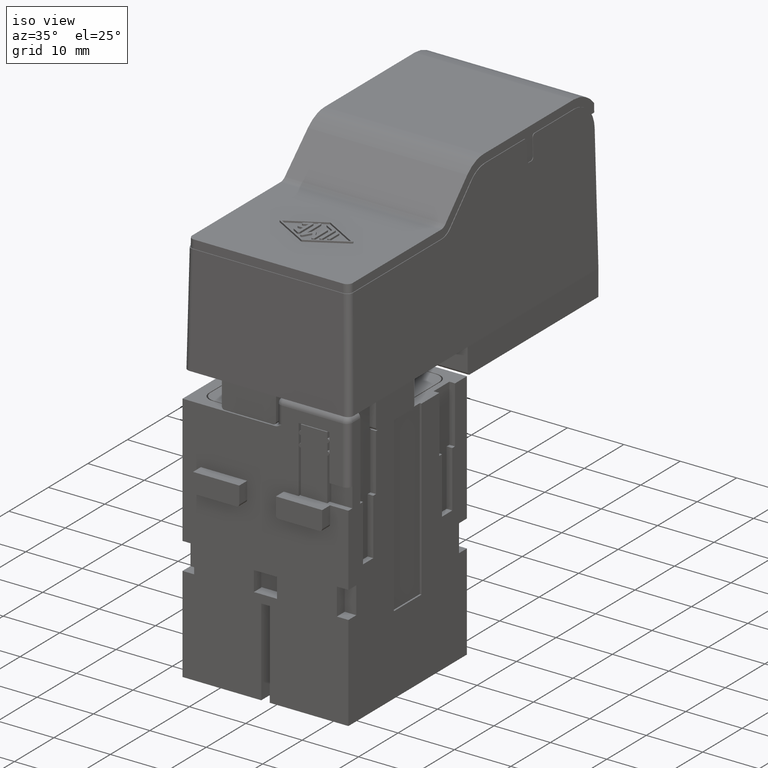
[diagram: clean part render]
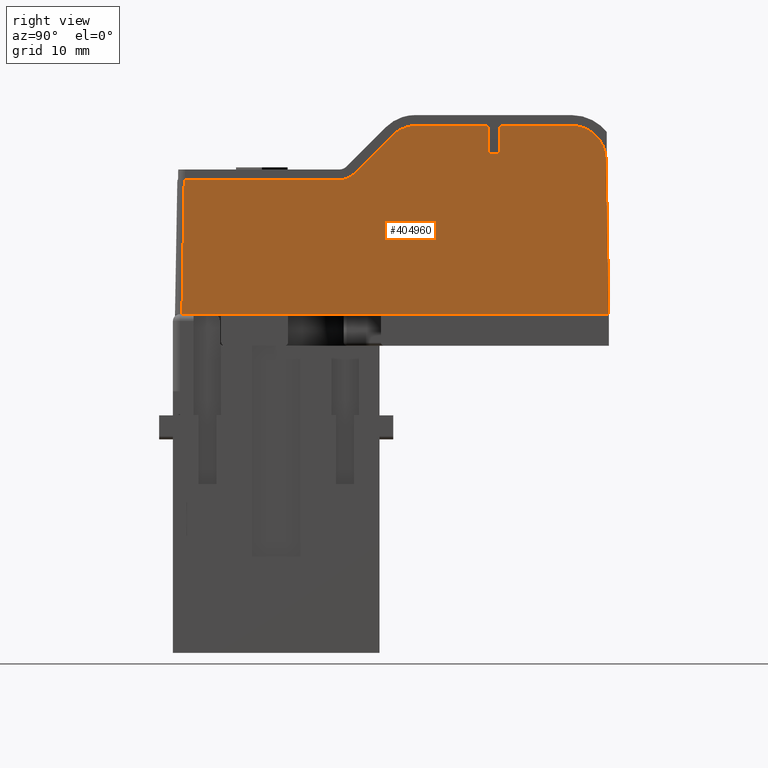
[diagram: tour spotlight — one face highlighted and labeled with its STEP entity id]
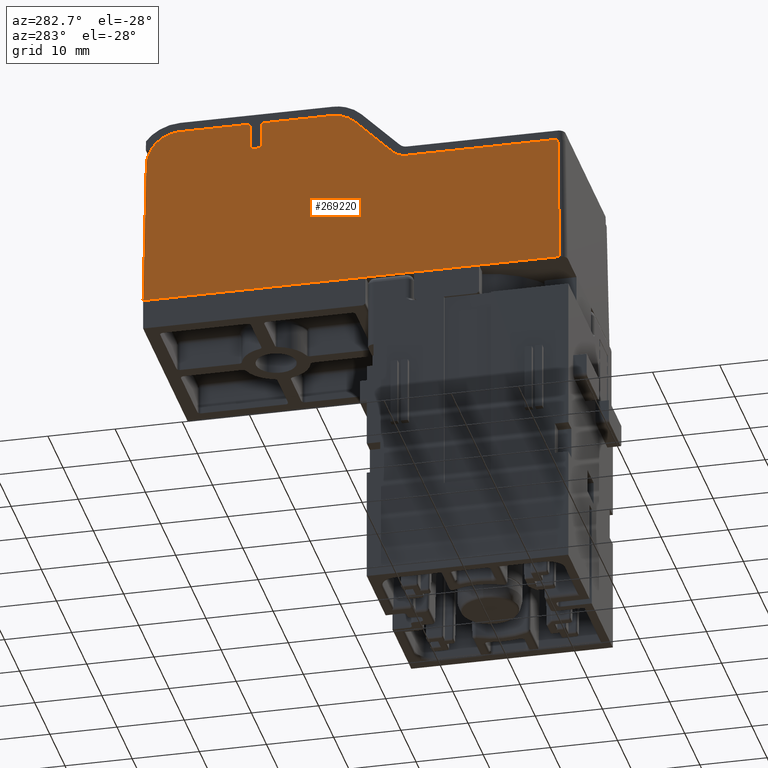
[diagram: tour spotlight — one face highlighted and labeled with its STEP entity id]
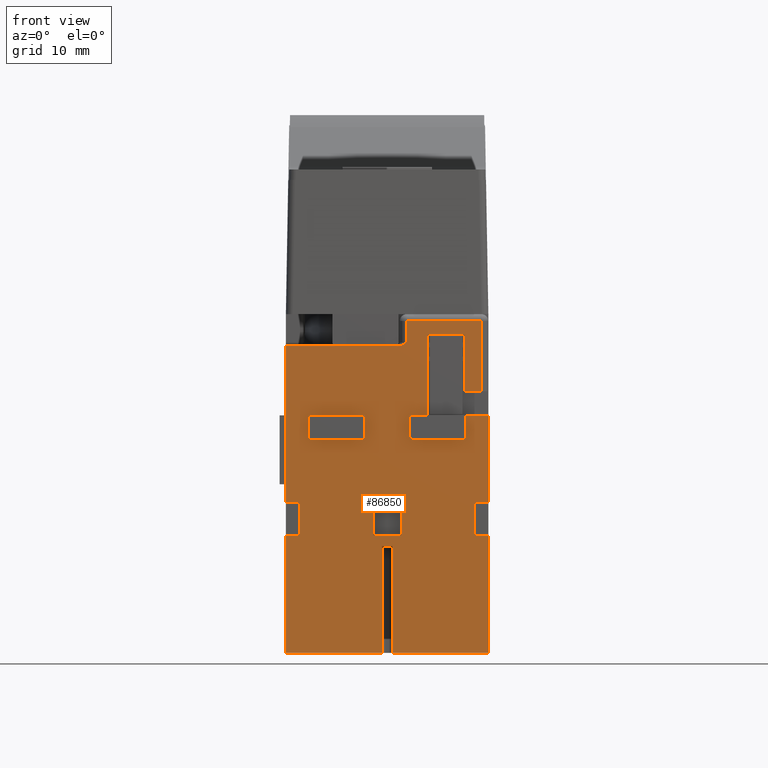
[diagram: tour spotlight — one face highlighted and labeled with its STEP entity id]
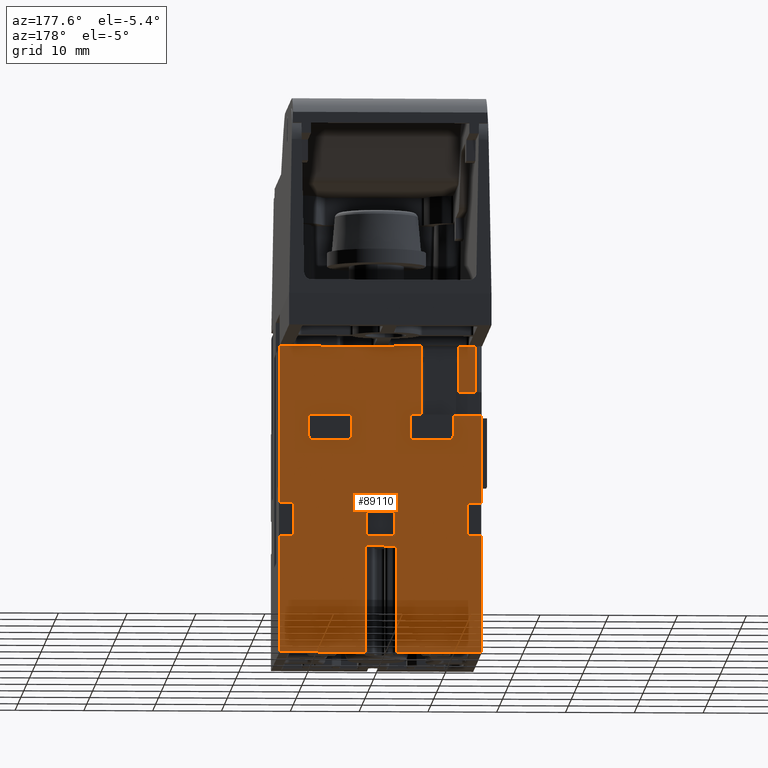
[diagram: tour spotlight — one face highlighted and labeled with its STEP entity id]
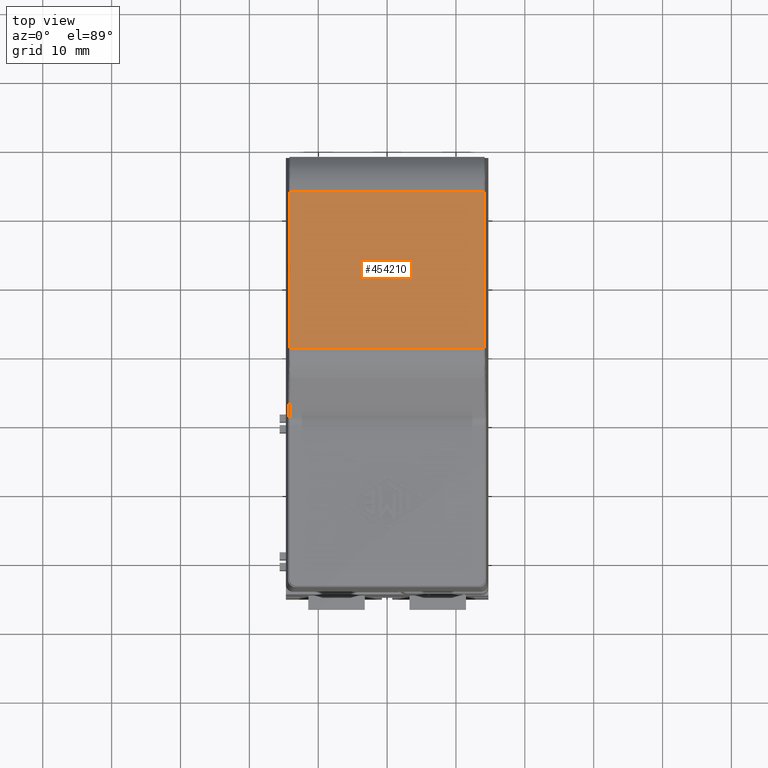
[diagram: tour spotlight — one face highlighted and labeled with its STEP entity id]
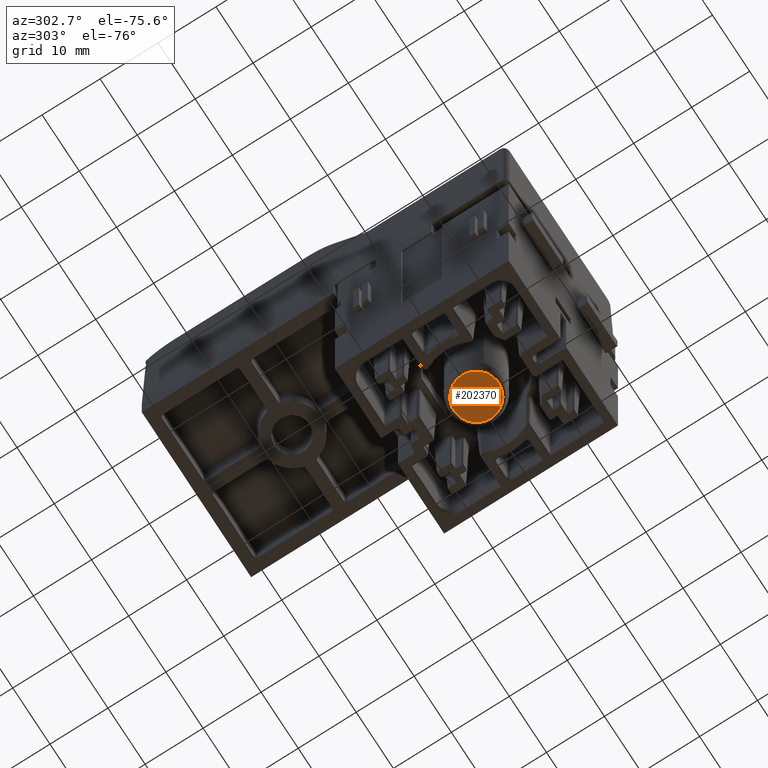
[diagram: tour spotlight — one face highlighted and labeled with its STEP entity id]
A machine part: a face-by-face anatomy tour. The part has 996 B-rep faces; the first image is the clean iso view, then the 6 largest visible faces are spotlighted one at a time (largest first), each with its STEP entity span.

Face 1 — right view, entity #404960. In plain terms, the highlighted planar face has unit normal (0.9998, 0, 0.0175).
Definition (entity closure, byte-faithful):
#259820=CARTESIAN_POINT('',(100.009783000016,30.9000000000008,
31.0000000000003));
#259830=DIRECTION('',(0.0123416547509367,0.707052927141244,
-0.707052927141248));
#259840=VECTOR('',#259830,1.);
#259850=LINE('',#259820,#259840);
#259860=CARTESIAN_POINT('',(100.36549417657,51.2786796564411,
10.62132034356));
#259870=VERTEX_POINT('',#259860);
#259880=CARTESIAN_POINT('',(100.462489428292,56.8355339059334,
5.0644660940676));
#259890=VERTEX_POINT('',#259880);
#259900=EDGE_CURVE('',#259870,#259890,#259850,.T.);
#262450=CARTESIAN_POINT('',(100.350156766116,49.1573593128814,
11.5000000000003));
#262460=VERTEX_POINT('',#262450);
#262490=CARTESIAN_POINT('',(100.350156766116,50.9196888218505,
11.5000000000003));
#262500=DIRECTION('',(-1.0419449946732E-16,1.,-2.16172385351495E-15));
#262510=VECTOR('',#262500,1.);
#262520=LINE('',#262490,#262510);
#262530=CARTESIAN_POINT('',(100.350156766116,26.6402214612559,
11.5000000000004));
#262540=VERTEX_POINT('',#262530);
#262550=EDGE_CURVE('',#262540,#262460,#262520,.T.);
#264330=CARTESIAN_POINT('',(100.009783000016,55.2000000000071,
31.0000000000003));
#264340=VERTEX_POINT('',#264330);
#266200=CARTESIAN_POINT('',(100.009783000016,26.2998476951557,
31.0000000000003));
#266210=VERTEX_POINT('',#266200);
#266240=CARTESIAN_POINT('',(100.009783000016,50.9196888218506,
31.0000000000003));
#266250=DIRECTION('',(-1.0419449946732E-16,1.,-2.16172385351495E-15));
#266260=VECTOR('',#266250,1.);
#266270=LINE('',#266240,#266260);
#266280=CARTESIAN_POINT('',(100.009783000016,31.999999999999,
31.0000000000003));
#266290=VERTEX_POINT('',#266280);
#266300=EDGE_CURVE('',#266210,#266290,#266270,.T.);
#266710=CARTESIAN_POINT('',(100.009783000016,41.7000000000089,
31.0000000000003));
#266720=VERTEX_POINT('',#266710);
#266750=CARTESIAN_POINT('',(100.009783000016,50.9196888218506,
31.0000000000003));
#266760=DIRECTION('',(-1.0419449946732E-16,1.,-2.16172385351495E-15));
#266770=VECTOR('',#266760,1.);
#266780=LINE('',#266750,#266770);
#266790=EDGE_CURVE('',#266720,#264340,#266780,.T.);
#269860=CARTESIAN_POINT('',(100.488051779049,60.3710678118662,
3.60000000000032));
#269870=VERTEX_POINT('',#269860);
#269900=CARTESIAN_POINT('',(100.400776454408,60.3710678118662,
8.60000000000032));
#269910=DIRECTION('',(-0.999847695156391,-1.41905913437087E-16,
-0.0174524064372835));
#269920=DIRECTION('',(-0.0174524064372835,3.35124362222902E-15,
0.999847695156391));
#269930=AXIS2_PLACEMENT_3D('',#269900,#269910,#269920);
#269940=ELLIPSE('',#269930,5.00076164021954,5.);
#269950=EDGE_CURVE('',#269870,#259890,#269940,.T.);
#289250=CARTESIAN_POINT('',(100.4025219609,49.1573593128814,
8.50000000000032));
#289260=DIRECTION('',(-0.999847695156391,-1.41905913437087E-16,
-0.0174524064372835));
#289270=DIRECTION('',(-0.0174524064372835,3.35124362223016E-15,
0.999847695156391));
#289280=AXIS2_PLACEMENT_3D('',#289250,#289260,#289270);
#289290=ELLIPSE('',#289280,3.00045698413172,3.);
#289300=EDGE_CURVE('',#262460,#259870,#289290,.T.);
#327630=CARTESIAN_POINT('',(100.488051779049,82.9082449053876,
3.60000000000027));
#327640=VERTEX_POINT('',#327630);
#327670=CARTESIAN_POINT('',(100.488051779049,50.9196888218505,
3.60000000000034));
#327680=DIRECTION('',(1.0419449946732E-16,-1.,2.16172385351495E-15));
#327690=VECTOR('',#327680,1.);
#327700=LINE('',#327670,#327690);
#327710=CARTESIAN_POINT('',(100.488051779049,72.8999999999993,
3.60000000000029));
#327720=VERTEX_POINT('',#327710);
#327730=EDGE_CURVE('',#327640,#327720,#327700,.T.);
#331010=CARTESIAN_POINT('',(100.479324246585,72.8999999999993,
4.10000000000029));
#331020=DIRECTION('',(-0.999847695156391,-1.41905913437087E-16,
-0.0174524064372835));
#331030=DIRECTION('',(-0.0174524064372835,8.12978433599E-15,
0.999847695156391));
#331040=AXIS2_PLACEMENT_3D('',#331010,#331020,#331030);
#331050=ELLIPSE('',#331040,0.500076164021954,0.5);
#331060=CARTESIAN_POINT('',(100.479324246585,72.3999999999993,
4.10000000000029));
#331070=VERTEX_POINT('',#331060);
#331080=EDGE_CURVE('',#327720,#331070,#331050,.T.);
#349430=CARTESIAN_POINT('',(100.416486012843,71.2999999999993,
7.7000000000003));
#349440=VERTEX_POINT('',#349430);
#349470=CARTESIAN_POINT('',(100.425213545307,71.2999999999993,
7.2000000000003));
#349480=DIRECTION('',(-0.999847695156391,-1.41905913437087E-16,
-0.0174524064372835));
#349490=DIRECTION('',(-0.0174524064372835,8.12978433599E-15,
0.999847695156391));
#349500=AXIS2_PLACEMENT_3D('',#349470,#349480,#349490);
#349510=ELLIPSE('',#349500,0.500076164021954,0.5);
#349520=CARTESIAN_POINT('',(100.425213545307,70.7999999999993,
7.2000000000003));
#349530=VERTEX_POINT('',#349520);
#349540=EDGE_CURVE('',#349530,#349440,#349510,.T.);
#349820=CARTESIAN_POINT('',(100.425213545307,72.3999999999993,
7.2000000000003));
#349830=VERTEX_POINT('',#349820);
#349880=CARTESIAN_POINT('',(100.009783000016,72.3999999999994,
31.0000000000002));
#349890=DIRECTION('',(-0.0174524064372835,2.16139461250152E-15,
0.999847695156391));
#349900=VECTOR('',#349890,1.);
#349910=LINE('',#349880,#349900);
#349920=EDGE_CURVE('',#331070,#349830,#349910,.T.);
#350790=CARTESIAN_POINT('',(100.402299618845,87.9074833811696,
8.51273796781383));
#350800=VERTEX_POINT('',#350790);
#350830=CARTESIAN_POINT('',(100.400776454408,82.9082449053877,
8.60000000000027));
#350840=DIRECTION('',(-0.999847695156391,-1.41905913437087E-16,
-0.0174524064372835));
#350850=DIRECTION('',(-0.0174524064372835,2.15957616774829E-15,
0.999847695156391));
#350860=AXIS2_PLACEMENT_3D('',#350830,#350840,#350850);
#350870=ELLIPSE('',#350860,5.00076164021954,5.);
#350880=EDGE_CURVE('',#350800,#327640,#350870,.T.);
#351170=CARTESIAN_POINT('',(100.479324246585,70.7999999999993,
4.10000000000029));
#351180=VERTEX_POINT('',#351170);
#351210=CARTESIAN_POINT('',(100.479324246585,70.2999999999993,
4.1000000000003));
#351220=DIRECTION('',(-0.999847695156391,-1.41905913437087E-16,
-0.0174524064372835));
#351230=DIRECTION('',(-0.0174524064372835,8.12978433599E-15,
0.999847695156391));
#351240=AXIS2_PLACEMENT_3D('',#351210,#351220,#351230);
#351250=ELLIPSE('',#351240,0.500076164021954,0.5);
#351260=CARTESIAN_POINT('',(100.488051779049,70.2999999999993,
3.6000000000003));
#351270=VERTEX_POINT('',#351260);
#351280=EDGE_CURVE('',#351180,#351270,#351250,.T.);
#356250=CARTESIAN_POINT('',(100.009783000016,70.7999999999994,
31.0000000000002));
#356260=DIRECTION('',(0.0174524064372835,-2.16139461250152E-15,
-0.999847695156391));
#356270=VECTOR('',#356260,1.);
#356280=LINE('',#356250,#356270);
#356290=EDGE_CURVE('',#349530,#351180,#356280,.T.);
#366650=CARTESIAN_POINT('',(100.416486012843,50.9196888218505,
7.70000000000035));
#366660=DIRECTION('',(1.0419449946732E-16,-1.,2.16172385351495E-15));
#366670=VECTOR('',#366660,1.);
#366680=LINE('',#366650,#366670);
#366690=CARTESIAN_POINT('',(100.416486012843,71.8999999999993,
7.7000000000003));
#366700=VERTEX_POINT('',#366690);
#366710=EDGE_CURVE('',#366700,#349440,#366680,.T.);
#369770=CARTESIAN_POINT('',(100.425213545307,71.8999999999993,
7.2000000000003));
#369780=DIRECTION('',(-0.999847695156391,-1.41905913437087E-16,
-0.0174524064372835));
#369790=DIRECTION('',(-0.0174524064372835,8.12978433599E-15,
0.999847695156391));
#369800=AXIS2_PLACEMENT_3D('',#369770,#369780,#369790);
#369810=ELLIPSE('',#369800,0.500076164021954,0.5);
#369820=EDGE_CURVE('',#366700,#349830,#369810,.T.);
#370190=CARTESIAN_POINT('',(100.488051779049,50.9196888218505,
3.60000000000034));
#370200=DIRECTION('',(1.0419449946732E-16,-1.,2.16172385351495E-15));
#370210=VECTOR('',#370200,1.);
#370220=LINE('',#370190,#370210);
#370230=EDGE_CURVE('',#351270,#269870,#370220,.T.);
#404470=CARTESIAN_POINT('',(100.009783000016,50.9196888218506,
31.0000000000003));
#404480=DIRECTION('',(-0.999847695156391,-1.41905913437087E-16,
-0.0174524064372835));
#404490=DIRECTION('',(1.0419449946732E-16,-1.,2.16172385351495E-15));
#404500=AXIS2_PLACEMENT_3D('',#404470,#404480,#404490);
#404510=PLANE('',#404500);
#404520=ORIENTED_EDGE('',*,*,#262550,.F.);
#404530=ORIENTED_EDGE('',*,*,#289300,.F.);
#404540=ORIENTED_EDGE('',*,*,#259900,.F.);
#404550=ORIENTED_EDGE('',*,*,#269950,.T.);
#404560=ORIENTED_EDGE('',*,*,#370230,.T.);
#404570=ORIENTED_EDGE('',*,*,#351280,.T.);
#404580=ORIENTED_EDGE('',*,*,#356290,.T.);
#404590=ORIENTED_EDGE('',*,*,#349540,.F.);
#404600=ORIENTED_EDGE('',*,*,#366710,.T.);
#404610=ORIENTED_EDGE('',*,*,#369820,.F.);
#404620=ORIENTED_EDGE('',*,*,#349920,.T.);
#404630=ORIENTED_EDGE('',*,*,#331080,.T.);
#404640=ORIENTED_EDGE('',*,*,#327730,.T.);
#404650=ORIENTED_EDGE('',*,*,#350880,.T.);
#404660=CARTESIAN_POINT('',(100.009783000016,88.2999999999993,
31.0000000000002));
#404670=DIRECTION('',(0.0174497491606827,-0.0174497491606848,
-0.999695459881888));
#404680=VECTOR('',#404670,1.);
#404690=LINE('',#404660,#404680);
#404700=CARTESIAN_POINT('',(100.009783000016,88.2999999999993,
31.0000000000003));
#404710=VERTEX_POINT('',#404700);
#404720=EDGE_CURVE('',#404710,#350800,#404690,.T.);
#404730=ORIENTED_EDGE('',*,*,#404720,.T.);
#404740=CARTESIAN_POINT('',(100.009783000016,50.9196888218506,
31.0000000000003));
#404750=DIRECTION('',(1.0419449946732E-16,-1.,2.16172385351495E-15));
#404760=VECTOR('',#404750,1.);
#404770=LINE('',#404740,#404760);
#404780=EDGE_CURVE('',#404710,#264340,#404770,.T.);
#404790=ORIENTED_EDGE('',*,*,#404780,.F.);
#404800=ORIENTED_EDGE('',*,*,#266790,.T.);
#404810=CARTESIAN_POINT('',(100.009783000016,50.9196888218506,
31.0000000000001));
#404820=DIRECTION('',(-1.0419449946732E-16,1.,-2.16172385351495E-15));
#404830=VECTOR('',#404820,1.);
#404840=LINE('',#404810,#404830);
#404850=EDGE_CURVE('',#266290,#266720,#404840,.T.);
#404860=ORIENTED_EDGE('',*,*,#404850,.T.);
#404870=ORIENTED_EDGE('',*,*,#266300,.T.);
#404880=CARTESIAN_POINT('',(100.010087632903,26.3001523280432,
30.9825475935631));
#404890=DIRECTION('',(-0.0174497491606827,-0.0174497491606805,
0.999695459881888));
#404900=VECTOR('',#404890,1.);
#404910=LINE('',#404880,#404900);
#404920=EDGE_CURVE('',#262540,#266210,#404910,.T.);
#404930=ORIENTED_EDGE('',*,*,#404920,.T.);
#404940=EDGE_LOOP('',(#404930,#404870,#404860,#404800,#404790,#404730,
#404650,#404640,#404630,#404620,#404610,#404600,#404590,#404580,#404570,
#404560,#404550,#404540,#404530,#404520));
#404950=FACE_OUTER_BOUND('',#404940,.T.);
#404960=ADVANCED_FACE('',(#404950),#404510,.T.);

Face 2 — auxiliary view, entity #269220. In plain terms, the highlighted planar face has unit normal (-0.9998, 0, 0.0175).
Definition (entity closure, byte-faithful):
#261600=CARTESIAN_POINT('',(128.957076571739,56.8355339059334,
5.0644660940676));
#261610=VERTEX_POINT('',#261600);
#261660=CARTESIAN_POINT('',(129.018789545623,60.3710678118662,
8.60000000000033));
#261670=DIRECTION('',(0.999847695156391,-5.85215804957899E-17,
-0.0174524064372835));
#261680=DIRECTION('',(0.0174524064372835,8.13123981493059E-15,
0.999847695156391));
#261690=AXIS2_PLACEMENT_3D('',#261660,#261670,#261680);
#261700=ELLIPSE('',#261690,5.00076164021954,5.);
#261710=CARTESIAN_POINT('',(128.931514220982,60.3710678118662,
3.60000000000032));
#261720=VERTEX_POINT('',#261710);
#261730=EDGE_CURVE('',#261610,#261720,#261700,.T.);
#262790=CARTESIAN_POINT('',(129.069409233915,26.6402214612559,
11.5000000000004));
#262800=VERTEX_POINT('',#262790);
#262830=CARTESIAN_POINT('',(129.069409233915,50.9196888218505,
11.5000000000003));
#262840=DIRECTION('',(-2.0797464753693E-17,-1.,2.16172385351495E-15));
#262850=VECTOR('',#262840,1.);
#262860=LINE('',#262830,#262850);
#262870=CARTESIAN_POINT('',(129.069409233915,49.1573593128814,
11.5000000000003));
#262880=VERTEX_POINT('',#262870);
#262890=EDGE_CURVE('',#262880,#262800,#262860,.T.);
#264840=CARTESIAN_POINT('',(129.409783000015,55.2000000000071,
31.0000000000003));
#264850=VERTEX_POINT('',#264840);
#264880=CARTESIAN_POINT('',(129.409783000015,50.9196888218506,
31.0000000000003));
#264890=DIRECTION('',(-2.0797464753693E-17,-1.,2.16172385351495E-15));
#264900=VECTOR('',#264890,1.);
#264910=LINE('',#264880,#264900);
#264920=CARTESIAN_POINT('',(129.409783000015,47.9999999999983,
31.0000000000003));
#264930=VERTEX_POINT('',#264920);
#264940=EDGE_CURVE('',#264850,#264930,#264910,.T.);
#265350=CARTESIAN_POINT('',(129.409783000015,38.2999999999993,
31.0000000000003));
#265360=VERTEX_POINT('',#265350);
#265390=CARTESIAN_POINT('',(129.409783000015,50.9196888218506,
31.0000000000003));
#265400=DIRECTION('',(2.0797464753693E-17,1.,-2.16172385351495E-15));
#265410=VECTOR('',#265400,1.);
#265420=LINE('',#265390,#265410);
#265430=CARTESIAN_POINT('',(129.409783000015,26.2998476951557,
31.0000000000003));
#265440=VERTEX_POINT('',#265430);
#265450=EDGE_CURVE('',#265440,#265360,#265420,.T.);
#267890=CARTESIAN_POINT('',(129.409783000015,50.9196888218506,
31.0000000000003));
#267900=DIRECTION('',(0.999847695156391,-5.85215804957899E-17,
-0.0174524064372835));
#267910=DIRECTION('',(2.0797464753693E-17,1.,-2.16172385351495E-15));
#267920=AXIS2_PLACEMENT_3D('',#267890,#267900,#267910);
#267930=PLANE('',#267920);
#267940=ORIENTED_EDGE('',*,*,#265450,.F.);
#267950=CARTESIAN_POINT('',(129.409783000015,50.9196888218506,
31.0000000000003));
#267960=DIRECTION('',(-2.07974647536947E-17,-1.,2.16172385351496E-15));
#267970=VECTOR('',#267960,1.);
#267980=LINE('',#267950,#267970);
#267990=EDGE_CURVE('',#264930,#265360,#267980,.T.);
#268000=ORIENTED_EDGE('',*,*,#267990,.T.);
#268010=ORIENTED_EDGE('',*,*,#264940,.T.);
#268020=CARTESIAN_POINT('',(129.409783000015,88.2999999999993,31.));
#268030=VERTEX_POINT('',#268020);
#268040=EDGE_CURVE('',#268030,#264850,#264910,.T.);
#268050=ORIENTED_EDGE('',*,*,#268040,.T.);
#268060=CARTESIAN_POINT('',(129.409783000015,88.2999999999993,
31.0000000000002));
#268070=DIRECTION('',(0.0174497491606827,0.0174497491606849,
0.999695459881888));
#268080=VECTOR('',#268070,1.);
#268090=LINE('',#268060,#268080);
#268100=CARTESIAN_POINT('',(129.017266381186,87.9074833811696,
8.51273796781381));
#268110=VERTEX_POINT('',#268100);
#268120=EDGE_CURVE('',#268110,#268030,#268090,.T.);
#268130=ORIENTED_EDGE('',*,*,#268120,.T.);
#268140=CARTESIAN_POINT('',(129.018789545623,82.9082449053877,
8.60000000000029));
#268150=DIRECTION('',(0.999847695156391,-5.85215804957899E-17,
-0.0174524064372835));
#268160=DIRECTION('',(0.0174524064372835,9.32290726941132E-15,
0.999847695156391));
#268170=AXIS2_PLACEMENT_3D('',#268140,#268150,#268160);
#268180=ELLIPSE('',#268170,5.00076164021954,5.);
#268190=CARTESIAN_POINT('',(128.931514220982,82.9082449053876,
3.60000000000027));
#268200=VERTEX_POINT('',#268190);
#268210=EDGE_CURVE('',#268200,#268110,#268180,.T.);
#268220=ORIENTED_EDGE('',*,*,#268210,.T.);
#268230=CARTESIAN_POINT('',(128.931514220982,50.9196888218505,
3.60000000000034));
#268240=DIRECTION('',(2.0797464753693E-17,1.,-2.16172385351495E-15));
#268250=VECTOR('',#268240,1.);
#268260=LINE('',#268230,#268250);
#268270=CARTESIAN_POINT('',(128.931514220982,72.8999999999993,
3.60000000000029));
#268280=VERTEX_POINT('',#268270);
#268290=EDGE_CURVE('',#268280,#268200,#268260,.T.);
#268300=ORIENTED_EDGE('',*,*,#268290,.T.);
#268310=CARTESIAN_POINT('',(128.940241753446,72.8999999999993,
4.10000000000029));
#268320=DIRECTION('',(0.999847695156391,-5.85215804957899E-17,
-0.0174524064372835));
#268330=DIRECTION('',(0.0174524064372835,3.35269910117549E-15,
0.999847695156391));
#268340=AXIS2_PLACEMENT_3D('',#268310,#268320,#268330);
#268350=ELLIPSE('',#268340,0.500076164021954,0.5);
#268360=CARTESIAN_POINT('',(128.940241753446,72.3999999999993,
4.10000000000029));
#268370=VERTEX_POINT('',#268360);
#268380=EDGE_CURVE('',#268370,#268280,#268350,.T.);
#268390=ORIENTED_EDGE('',*,*,#268380,.T.);
#268400=CARTESIAN_POINT('',(129.409783000015,72.3999999999994,
31.0000000000002));
#268410=DIRECTION('',(-0.0174524064372835,-2.16139461250152E-15,
-0.999847695156391));
#268420=VECTOR('',#268410,1.);
#268430=LINE('',#268400,#268420);
#268440=CARTESIAN_POINT('',(128.994352454724,72.3999999999993,
7.2000000000003));
#268450=VERTEX_POINT('',#268440);
#268460=EDGE_CURVE('',#268450,#268370,#268430,.T.);
#268470=ORIENTED_EDGE('',*,*,#268460,.T.);
#268480=CARTESIAN_POINT('',(128.994352454724,71.8999999999993,
7.2000000000003));
#268490=DIRECTION('',(0.999847695156391,-5.85215804957899E-17,
-0.0174524064372835));
#268500=DIRECTION('',(0.0174524064372835,3.35269910117549E-15,
0.999847695156391));
#268510=AXIS2_PLACEMENT_3D('',#268480,#268490,#268500);
#268520=ELLIPSE('',#268510,0.500076164021954,0.5);
#268530=CARTESIAN_POINT('',(129.003079987188,71.8999999999993,
7.7000000000003));
#268540=VERTEX_POINT('',#268530);
#268550=EDGE_CURVE('',#268450,#268540,#268520,.T.);
#268560=ORIENTED_EDGE('',*,*,#268550,.F.);
#268570=CARTESIAN_POINT('',(129.003079987188,50.9196888218505,
7.70000000000035));
#268580=DIRECTION('',(2.0797464753693E-17,1.,-2.16172385351495E-15));
#268590=VECTOR('',#268580,1.);
#268600=LINE('',#268570,#268590);
#268610=CARTESIAN_POINT('',(129.003079987188,71.2999999999993,
7.7000000000003));
#268620=VERTEX_POINT('',#268610);
#268630=EDGE_CURVE('',#268620,#268540,#268600,.T.);
#268640=ORIENTED_EDGE('',*,*,#268630,.T.);
#268650=CARTESIAN_POINT('',(128.994352454724,71.2999999999993,
7.2000000000003));
#268660=DIRECTION('',(0.999847695156391,-5.85215804957899E-17,
-0.0174524064372835));
#268670=DIRECTION('',(0.0174524064372835,3.35269910117549E-15,
0.999847695156391));
#268680=AXIS2_PLACEMENT_3D('',#268650,#268660,#268670);
#268690=ELLIPSE('',#268680,0.500076164021954,0.5);
#268700=CARTESIAN_POINT('',(128.994352454724,70.7999999999993,
7.2000000000003));
#268710=VERTEX_POINT('',#268700);
#268720=EDGE_CURVE('',#268620,#268710,#268690,.T.);
#268730=ORIENTED_EDGE('',*,*,#268720,.F.);
#268740=CARTESIAN_POINT('',(129.409783000015,70.7999999999994,
31.0000000000002));
#268750=DIRECTION('',(0.0174524064372835,2.16139461250152E-15,
0.999847695156391));
#268760=VECTOR('',#268750,1.);
#268770=LINE('',#268740,#268760);
#268780=CARTESIAN_POINT('',(128.940241753446,70.7999999999993,
4.10000000000029));
#268790=VERTEX_POINT('',#268780);
#268800=EDGE_CURVE('',#268790,#268710,#268770,.T.);
#268810=ORIENTED_EDGE('',*,*,#268800,.T.);
#268820=CARTESIAN_POINT('',(128.940241753446,70.2999999999993,
4.1000000000003));
#268830=DIRECTION('',(0.999847695156391,-5.85215804957899E-17,
-0.0174524064372835));
#268840=DIRECTION('',(0.0174524064372835,3.35269910117549E-15,
0.999847695156391));
#268850=AXIS2_PLACEMENT_3D('',#268820,#268830,#268840);
#268860=ELLIPSE('',#268850,0.500076164021954,0.5);
#268870=CARTESIAN_POINT('',(128.931514220982,70.2999999999993,
3.6000000000003));
#268880=VERTEX_POINT('',#268870);
#268890=EDGE_CURVE('',#268880,#268790,#268860,.T.);
#268900=ORIENTED_EDGE('',*,*,#268890,.T.);
#268910=CARTESIAN_POINT('',(128.931514220982,50.9196888218505,
3.60000000000034));
#268920=DIRECTION('',(2.0797464753693E-17,1.,-2.16172385351495E-15));
#268930=VECTOR('',#268920,1.);
#268940=LINE('',#268910,#268930);
#268950=EDGE_CURVE('',#261720,#268880,#268940,.T.);
#268960=ORIENTED_EDGE('',*,*,#268950,.T.);
#268970=ORIENTED_EDGE('',*,*,#261730,.T.);
#268980=CARTESIAN_POINT('',(129.409783000015,30.9000000000008,
31.0000000000003));
#268990=DIRECTION('',(-0.0123416547509368,0.707052927141244,
-0.707052927141248));
#269000=VECTOR('',#268990,1.);
#269010=LINE('',#268980,#269000);
#269020=CARTESIAN_POINT('',(129.054071823461,51.2786796564411,
10.62132034356));
#269030=VERTEX_POINT('',#269020);
#269040=EDGE_CURVE('',#269030,#261610,#269010,.T.);
#269050=ORIENTED_EDGE('',*,*,#269040,.T.);
#269060=CARTESIAN_POINT('',(129.017044039131,49.1573593128814,
8.50000000000033));
#269070=DIRECTION('',(0.999847695156391,-5.85215804957899E-17,
-0.0174524064372835));
#269080=DIRECTION('',(0.0174524064372835,8.13123981493631E-15,
0.999847695156391));
#269090=AXIS2_PLACEMENT_3D('',#269060,#269070,#269080);
#269100=ELLIPSE('',#269090,3.00045698413172,3.);
#269110=EDGE_CURVE('',#269030,#262880,#269100,.T.);
#269120=ORIENTED_EDGE('',*,*,#269110,.F.);
#269130=ORIENTED_EDGE('',*,*,#262890,.F.);
#269140=CARTESIAN_POINT('',(129.409478367128,26.3001523280432,
30.9825475935631));
#269150=DIRECTION('',(-0.0174497491606827,0.0174497491606805,
-0.999695459881888));
#269160=VECTOR('',#269150,1.);
#269170=LINE('',#269140,#269160);
#269180=EDGE_CURVE('',#265440,#262800,#269170,.T.);
#269190=ORIENTED_EDGE('',*,*,#269180,.T.);
#269200=EDGE_LOOP('',(#269190,#269130,#269120,#269050,#268970,#268960,
#268900,#268810,#268730,#268640,#268560,#268470,#268390,#268300,#268220,
#268130,#268050,#268010,#268000,#267940));
#269210=FACE_OUTER_BOUND('',#269200,.T.);
#269220=ADVANCED_FACE('',(#269210),#267930,.T.);

Face 3 — front view, entity #86850. In plain terms, the highlighted planar face has unit normal (-0, -1, 0).
Definition (entity closure, byte-faithful):
#60=CARTESIAN_POINT('',(27.154278547698,65.557183,-32.0000000000005));
#70=DIRECTION('',(1.,8.47409175530813E-33,3.46944695194975E-17));
#80=VECTOR('',#70,1.);
#90=LINE('',#60,#80);
#100=CARTESIAN_POINT('',(53.997735,65.557183,-32.0000000000005));
#110=VERTEX_POINT('',#100);
#120=CARTESIAN_POINT('',(56.0477350000008,65.557183,-32.0000000000005));
#130=VERTEX_POINT('',#120);
#140=EDGE_CURVE('',#110,#130,#90,.T.);
#2830=CARTESIAN_POINT('',(37.597735,75.257183,-32.));
#2840=DIRECTION('',(1.22464679914735E-16,1.22464679914735E-16,-1.));
#2850=DIRECTION('',(1.,-1.35963107344689E-32,1.22464679914735E-16));
#2860=AXIS2_PLACEMENT_3D('',#2830,#2840,#2850);
#2870=CIRCLE('',#2860,0.5);
#2880=CARTESIAN_POINT('',(38.097735,75.257183,-32.0000000000006));
#2890=VERTEX_POINT('',#2880);
#2900=CARTESIAN_POINT('',(37.597735,74.757183,-32.0000000000006));
#2910=VERTEX_POINT('',#2900);
#2920=EDGE_CURVE('',#2890,#2910,#2870,.T.);
#6300=CARTESIAN_POINT('',(38.097735,58.057183,-32.));
#6310=DIRECTION('',(-1.4637067577343E-32,1.,1.22464679914735E-16));
#6320=VECTOR('',#6310,1.);
#6330=LINE('',#6300,#6320);
#6340=CARTESIAN_POINT('',(38.097735,78.257183,-32.0000000000006));
#6350=VERTEX_POINT('',#6340);
#6360=EDGE_CURVE('',#2890,#6350,#6330,.T.);
#11660=CARTESIAN_POINT('',(52.297735,74.757183,-32.0000000000006));
#11670=VERTEX_POINT('',#11660);
#11840=CARTESIAN_POINT('',(45.097735,74.757183,-32.0000000000006));
#11850=VERTEX_POINT('',#11840);
#11880=CARTESIAN_POINT('',(41.854278547698,74.757183,-32.));
#11890=DIRECTION('',(-1.,-1.10555925536877E-32,-1.22464679914735E-16));
#11900=VECTOR('',#11890,1.);
#11910=LINE('',#11880,#11900);
#11920=EDGE_CURVE('',#11670,#11850,#11910,.T.);
#12590=CARTESIAN_POINT('',(30.397735,74.757183,-32.0000000000006));
#12600=VERTEX_POINT('',#12590);
#12630=CARTESIAN_POINT('',(27.154278547698,74.757183,-32.));
#12640=DIRECTION('',(-1.,-1.10555925536877E-32,-1.22464679914735E-16));
#12650=VECTOR('',#12640,1.);
#12660=LINE('',#12630,#12650);
#12670=EDGE_CURVE('',#2910,#12600,#12660,.T.);
#19250=CARTESIAN_POINT('',(43.397735,64.257183,-32.0000000000005));
#19260=VERTEX_POINT('',#19250);
#19310=CARTESIAN_POINT('',(27.154278547698,64.257183,-32.0000000000005))
;
#19320=DIRECTION('',(-1.,-8.47409175530813E-33,-3.46944695194975E-17));
#19330=VECTOR('',#19320,1.);
#19340=LINE('',#19310,#19330);
#19350=CARTESIAN_POINT('',(39.297735,64.257183,-32.0000000000005));
#19360=VERTEX_POINT('',#19350);
#19370=EDGE_CURVE('',#19260,#19360,#19340,.T.);
#23530=CARTESIAN_POINT('',(26.647735000001,43.7571829999997,
-32.0000000000003));
#23540=VERTEX_POINT('',#23530);
#23570=CARTESIAN_POINT('',(26.6477350000008,58.0571829999996,
-32.0000000000001));
#23580=DIRECTION('',(-7.67670264259617E-15,1.,-2.25607110057568E-14));
#23590=VECTOR('',#23580,1.);
#23600=LINE('',#23570,#23590);
#23610=CARTESIAN_POINT('',(26.6477350000008,60.757183,-32.0000000000005)
);
#23620=VERTEX_POINT('',#23610);
#23630=EDGE_CURVE('',#23540,#23620,#23600,.T.);
#23850=CARTESIAN_POINT('',(26.6477350000008,65.557183,-32.0000000000005)
);
#23860=VERTEX_POINT('',#23850);
#23890=CARTESIAN_POINT('',(26.6477350000008,58.057183,-32.0000000000004)
);
#23900=DIRECTION('',(-7.67670264259617E-15,1.,-7.56568034013364E-15));
#23910=VECTOR('',#23900,1.);
#23920=LINE('',#23890,#23910);
#23930=CARTESIAN_POINT('',(26.6477350000007,78.257183,-32.0000000000006)
);
#23940=VERTEX_POINT('',#23930);
#23950=EDGE_CURVE('',#23860,#23940,#23920,.T.);
#26110=CARTESIAN_POINT('',(28.697735,65.557183,-32.0000000000005));
#26120=VERTEX_POINT('',#26110);
#26150=CARTESIAN_POINT('',(27.154278547698,65.557183,-32.0000000000005))
;
#26160=DIRECTION('',(1.,8.47409175530813E-33,3.46944695194975E-17));
#26170=VECTOR('',#26160,1.);
#26180=LINE('',#26150,#26170);
#26190=EDGE_CURVE('',#23860,#26120,#26180,.T.);
#27060=CARTESIAN_POINT('',(53.997735,60.757183,-32.0000000000005));
#27070=VERTEX_POINT('',#27060);
#27100=CARTESIAN_POINT('',(27.154278547698,60.757183,-32.0000000000005))
;
#27110=DIRECTION('',(-1.,-1.15555796663277E-32,-3.46944695194975E-17));
#27120=VECTOR('',#27110,1.);
#27130=LINE('',#27100,#27120);
#27140=CARTESIAN_POINT('',(56.0477350000008,60.757183,-32.0000000000005)
);
#27150=VERTEX_POINT('',#27140);
#27160=EDGE_CURVE('',#27150,#27070,#27130,.T.);
#31430=CARTESIAN_POINT('',(53.997735,58.057183,-32.0000000000004));
#31440=DIRECTION('',(-1.57772181044202E-30,1.,-7.56568034013364E-15));
#31450=VECTOR('',#31440,1.);
#31460=LINE('',#31430,#31450);
#31470=EDGE_CURVE('',#27070,#110,#31460,.T.);
#38670=CARTESIAN_POINT('',(35.4727350000006,89.957183,-32.0000000000007)
);
#38680=VERTEX_POINT('',#38670);
#38710=CARTESIAN_POINT('',(27.154278547698,89.957183,-32.0000000000007))
;
#38720=DIRECTION('',(-1.,-2.67319076280953E-31,-3.46944695194975E-17));
#38730=VECTOR('',#38720,1.);
#38740=LINE('',#38710,#38730);
#38750=CARTESIAN_POINT('',(30.0227350000006,89.957183,-32.0000000000007)
);
#38760=VERTEX_POINT('',#38750);
#38770=EDGE_CURVE('',#38680,#38760,#38740,.T.);
#44060=CARTESIAN_POINT('',(35.4727350000007,78.257183,-32.0000000000006)
);
#44070=VERTEX_POINT('',#44060);
#44100=CARTESIAN_POINT('',(35.4727350000008,58.057183,-32.0000000000004)
);
#44110=DIRECTION('',(7.67670264259616E-15,-1.,7.56568034013364E-15));
#44120=VECTOR('',#44110,1.);
#44130=LINE('',#44100,#44120);
#44140=EDGE_CURVE('',#38680,#44070,#44130,.T.);
#46650=CARTESIAN_POINT('',(44.597735,78.257183,-32.0000000000006));
#46660=VERTEX_POINT('',#46650);
#46830=CARTESIAN_POINT('',(52.797735,78.257183,-32.0000000000006));
#46840=VERTEX_POINT('',#46830);
#46870=CARTESIAN_POINT('',(27.154278547698,78.257183,-32.0000000000006))
;
#46880=DIRECTION('',(-1.,-1.15555796663277E-32,-3.46944695194975E-17));
#46890=VECTOR('',#46880,1.);
#46900=LINE('',#46870,#46890);
#46910=EDGE_CURVE('',#46840,#46660,#46900,.T.);
#49890=CARTESIAN_POINT('',(30.397735,75.257183,-32.));
#49900=DIRECTION('',(1.22464679914735E-16,1.22464679914735E-16,-1.));
#49910=DIRECTION('',(1.,-1.35963107344689E-32,1.22464679914735E-16));
#49920=AXIS2_PLACEMENT_3D('',#49890,#49900,#49910);
#49930=CIRCLE('',#49920,0.5);
#49940=CARTESIAN_POINT('',(29.897735,75.257183,-32.0000000000006));
#49950=VERTEX_POINT('',#49940);
#49960=EDGE_CURVE('',#12600,#49950,#49930,.T.);
#50340=CARTESIAN_POINT('',(27.6477350000007,81.7571829999999,
-32.0000000000006));
#50350=VERTEX_POINT('',#50340);
#50380=CARTESIAN_POINT('',(27.6477350000008,58.057183,-32.0000000000004)
);
#50390=DIRECTION('',(7.67670264259617E-15,-1.,7.56568034013364E-15));
#50400=VECTOR('',#50390,1.);
#50410=LINE('',#50380,#50400);
#50420=CARTESIAN_POINT('',(27.6477350000006,91.9571830000001,
-32.0000000000007));
#50430=VERTEX_POINT('',#50420);
#50440=EDGE_CURVE('',#50430,#50350,#50410,.T.);
#52930=CARTESIAN_POINT('',(38.4977350000006,91.9571830000001,
-32.0000000000007));
#52940=VERTEX_POINT('',#52930);
#53150=CARTESIAN_POINT('',(38.4977350000006,88.857183,-31.0000000000007)
);
#53160=DIRECTION('',(0.,1.,-7.56568034013364E-15));
#53170=DIRECTION('',(0.,7.56568034013364E-15,1.));
#53180=AXIS2_PLACEMENT_3D('',#53150,#53160,#53170);
#53190=TOROIDAL_SURFACE('',#53180,1.5,0.5);
#53200=CARTESIAN_POINT('',(52.2133003382037,67.0571829999998,
-32.0000000000005));
#53210=DIRECTION('',(3.46944695194975E-17,-7.56568034013364E-15,-1.));
#53220=DIRECTION('',(-7.67670264259617E-15,1.,-7.56568034013364E-15));
#53230=AXIS2_PLACEMENT_3D('',#53200,#53210,#53220);
#53240=PLANE('',#53230);
#53250=CARTESIAN_POINT('',(38.4977350000006,88.857183,-32.0000000000007)
);
#53260=CARTESIAN_POINT('',(38.5819494790306,88.7976343707979,
-32.0000000000007));
#53270=CARTESIAN_POINT('',(38.6673601942083,88.7372095840042,
-32.0000000000011));
#53280=CARTESIAN_POINT('',(38.7547527089292,88.6798567783778,
-32.0000000000011));
#53290=CARTESIAN_POINT('',(38.84214879965,88.6225016259413,
-32.0000000000011));
#53300=CARTESIAN_POINT('',(38.9315338735935,88.5682399157159,
-32.0000000000017));
#53310=CARTESIAN_POINT('',(39.0237275299912,88.5209924769421,
-32.0000000000017));
#53320=CARTESIAN_POINT('',(39.115885038188,88.4737635634114,
-32.0000000000017));
#53330=CARTESIAN_POINT('',(39.2109304604415,88.4334186963391,
-32.0000000000007));
#53340=CARTESIAN_POINT('',(39.3096512124244,88.4043039536129,
-32.0000000000007));
#53350=CARTESIAN_POINT('',(39.4082331962485,88.3752301364182,
-32.0000000000007));
#53360=CARTESIAN_POINT('',(39.5121044500012,88.3571829999999,
-32.0000000000007));
#53370=CARTESIAN_POINT('',(39.61576898875,88.3571829999998,
-32.0000000000007));
#53380=B_SPLINE_CURVE_WITH_KNOTS('',3,(#53250,#53260,#53270,#53280,
#53290,#53300,#53310,#53320,#53330,#53340,#53350,#53360,#53370),
.UNSPECIFIED.,.F.,.F.,(4,3,3,3,4),(0.,0.312269886828182,
0.624805969590502,0.934073398015425,1.24486060412479),.UNSPECIFIED.);
#53390=SURFACE_CURVE('',#53380,(#53190,#53240),.CURVE_3D.);
#53400=CARTESIAN_POINT('',(38.4977350000006,88.857183,-32.0000000000007)
);
#53410=VERTEX_POINT('',#53400);
#53420=CARTESIAN_POINT('',(39.6157689888024,88.357183,-32.0000000000007)
);
#53430=VERTEX_POINT('',#53420);
#53440=EDGE_CURVE('',#53410,#53430,#53390,.T.);
#56760=CARTESIAN_POINT('',(27.154278547698,91.9571830000001,
-32.0000000000007));
#56770=DIRECTION('',(1.,-3.85185988877018E-33,3.46944695194975E-17));
#56780=VECTOR('',#56770,1.);
#56790=LINE('',#56760,#56780);
#56800=EDGE_CURVE('',#50430,#52940,#56790,.T.);
#57910=CARTESIAN_POINT('',(42.097735,59.2571830000001,-32.0000000000004)
);
#57920=VERTEX_POINT('',#57910);
#57950=CARTESIAN_POINT('',(27.154278547698,59.2571830000001,
-32.0000000000004));
#57960=DIRECTION('',(-1.,5.03284013067272E-30,-3.46944695194975E-17));
#57970=VECTOR('',#57960,1.);
#57980=LINE('',#57950,#57970);
#57990=CARTESIAN_POINT('',(40.597735,59.2571830000001,-32.0000000000004)
);
#58000=VERTEX_POINT('',#57990);
#58010=EDGE_CURVE('',#57920,#58000,#57980,.T.);
#63370=CARTESIAN_POINT('',(30.0227350000008,58.057183,-32.0000000000004)
);
#63380=DIRECTION('',(-7.67670264259616E-15,1.,-7.56568034013364E-15));
#63390=VECTOR('',#63380,1.);
#63400=LINE('',#63370,#63390);
#63410=CARTESIAN_POINT('',(30.0227350000007,81.7571829999999,
-32.0000000000006));
#63420=VERTEX_POINT('',#63410);
#63430=EDGE_CURVE('',#63420,#38760,#63400,.T.);
#63680=CARTESIAN_POINT('',(27.154278547698,88.357183,-32.0000000000007))
;
#63690=DIRECTION('',(1.,-4.59912070719668E-31,3.46944695194975E-17));
#63700=VECTOR('',#63690,1.);
#63710=LINE('',#63680,#63700);
#63720=CARTESIAN_POINT('',(56.0477350000006,88.357183,-32.0000000000007)
);
#63730=VERTEX_POINT('',#63720);
#63740=EDGE_CURVE('',#53430,#63730,#63710,.T.);
#65740=CARTESIAN_POINT('',(28.697735,60.757183,-32.0000000000005));
#65750=VERTEX_POINT('',#65740);
#65850=CARTESIAN_POINT('',(27.154278547698,60.757183,-32.0000000000005))
;
#65860=DIRECTION('',(-1.,-1.15555796663277E-32,-3.46944695194975E-17));
#65870=VECTOR('',#65860,1.);
#65880=LINE('',#65850,#65870);
#65890=EDGE_CURVE('',#65750,#23620,#65880,.T.);
#66140=CARTESIAN_POINT('',(28.697735,58.057183,-32.0000000000004));
#66150=DIRECTION('',(1.57772181044202E-30,-1.,7.56568034013364E-15));
#66160=VECTOR('',#66150,1.);
#66170=LINE('',#66140,#66160);
#66180=EDGE_CURVE('',#26120,#65750,#66170,.T.);
#68060=CARTESIAN_POINT('',(27.154278547698,81.7571829999999,
-32.0000000000006));
#68070=DIRECTION('',(1.,7.67670264259617E-15,-9.77553279499254E-29));
#68080=VECTOR('',#68070,1.);
#68090=LINE('',#68060,#68080);
#68100=EDGE_CURVE('',#50350,#63420,#68090,.T.);
#68690=CARTESIAN_POINT('',(39.297735,58.057183,-32.0000000000004));
#68700=DIRECTION('',(1.57772181044202E-30,-1.,7.56568034013364E-15));
#68710=VECTOR('',#68700,1.);
#68720=LINE('',#68690,#68710);
#68730=CARTESIAN_POINT('',(39.297735,60.757183,-32.0000000000005));
#68740=VERTEX_POINT('',#68730);
#68750=EDGE_CURVE('',#19360,#68740,#68720,.T.);
#73010=CARTESIAN_POINT('',(27.154278547698,78.257183,-32.0000000000006))
;
#73020=DIRECTION('',(1.,1.15555796663277E-32,3.46944695194975E-17));
#73030=VECTOR('',#73020,1.);
#73040=LINE('',#73010,#73030);
#73050=CARTESIAN_POINT('',(29.897735,78.257183,-32.0000000000006));
#73060=VERTEX_POINT('',#73050);
#73070=EDGE_CURVE('',#23940,#73060,#73040,.T.);
#73240=EDGE_CURVE('',#6350,#44070,#46900,.T.);
#74440=CARTESIAN_POINT('',(38.4977350000006,58.057183,-32.0000000000004)
);
#74450=DIRECTION('',(0.,1.,-7.56568034013364E-15));
#74460=VECTOR('',#74450,1.);
#74470=LINE('',#74440,#74460);
#74480=EDGE_CURVE('',#53410,#52940,#74470,.T.);
#76990=CARTESIAN_POINT('',(42.097735,43.7571829999998,-32.0000000000003)
);
#77000=VERTEX_POINT('',#76990);
#77050=CARTESIAN_POINT('',(42.097735,58.057183,-32.0000000000004));
#77060=DIRECTION('',(-3.15544362088405E-30,-1.,7.56568034013364E-15));
#77070=VECTOR('',#77060,1.);
#77080=LINE('',#77050,#77070);
#77090=EDGE_CURVE('',#57920,#77000,#77080,.T.);
#77900=CARTESIAN_POINT('',(40.597735,58.057183,-32.0000000000004));
#77910=DIRECTION('',(-7.88860905221012E-31,1.,-7.56568034013364E-15));
#77920=VECTOR('',#77910,1.);
#77930=LINE('',#77900,#77920);
#77940=CARTESIAN_POINT('',(40.597735,43.7571829999998,-32.0000000000003)
);
#77950=VERTEX_POINT('',#77940);
#77960=EDGE_CURVE('',#77950,#58000,#77930,.T.);
#78510=CARTESIAN_POINT('',(43.397735,58.057183,-32.0000000000004));
#78520=DIRECTION('',(1.57772181044202E-30,-1.,7.56568034013364E-15));
#78530=VECTOR('',#78520,1.);
#78540=LINE('',#78510,#78530);
#78550=CARTESIAN_POINT('',(43.397735,60.757183,-32.0000000000005));
#78560=VERTEX_POINT('',#78550);
#78570=EDGE_CURVE('',#19260,#78560,#78540,.T.);
#83050=CARTESIAN_POINT('',(29.897735,58.057183,-32.0000000000004));
#83060=DIRECTION('',(-1.57772181044202E-30,-1.,7.56568034013364E-15));
#83070=VECTOR('',#83060,1.);
#83080=LINE('',#83050,#83070);
#83090=EDGE_CURVE('',#73060,#49950,#83080,.T.);
#83730=CARTESIAN_POINT('',(44.597735,58.057183,-32.));
#83740=DIRECTION('',(1.4637067577343E-32,-1.,-1.22464679914735E-16));
#83750=VECTOR('',#83740,1.);
#83760=LINE('',#83730,#83750);
#83770=CARTESIAN_POINT('',(44.597735,75.257183,-32.0000000000006));
#83780=VERTEX_POINT('',#83770);
#83790=EDGE_CURVE('',#46660,#83780,#83760,.T.);
#84360=CARTESIAN_POINT('',(52.797735,58.057183,-32.));
#84370=DIRECTION('',(-1.4637067577343E-32,1.,1.22464679914735E-16));
#84380=VECTOR('',#84370,1.);
#84390=LINE('',#84360,#84380);
#84400=CARTESIAN_POINT('',(52.797735,75.257183,-32.0000000000006));
#84410=VERTEX_POINT('',#84400);
#84420=EDGE_CURVE('',#84410,#46840,#84390,.T.);
#85090=CARTESIAN_POINT('',(45.097735,75.257183,-32.));
#85100=DIRECTION('',(-1.22464679914735E-16,-1.22464679914735E-16,1.));
#85110=DIRECTION('',(-1.,1.35963107344689E-32,-1.22464679914735E-16));
#85120=AXIS2_PLACEMENT_3D('',#85090,#85100,#85110);
#85130=CIRCLE('',#85120,0.5);
#85140=EDGE_CURVE('',#83780,#11850,#85130,.T.);
#85320=CARTESIAN_POINT('',(52.297735,75.257183,-32.));
#85330=DIRECTION('',(1.22464679914735E-16,1.22464679914735E-16,-1.));
#85340=DIRECTION('',(1.,-1.35963107344689E-32,1.22464679914735E-16));
#85350=AXIS2_PLACEMENT_3D('',#85320,#85330,#85340);
#85360=CIRCLE('',#85350,0.5);
#85370=EDGE_CURVE('',#84410,#11670,#85360,.T.);
#86150=ORIENTED_EDGE('',*,*,#84420,.T.);
#86160=ORIENTED_EDGE('',*,*,#85370,.F.);
#86170=ORIENTED_EDGE('',*,*,#11920,.F.);
#86180=ORIENTED_EDGE('',*,*,#85140,.T.);
#86190=ORIENTED_EDGE('',*,*,#83790,.T.);
#86200=ORIENTED_EDGE('',*,*,#46910,.T.);
#86210=EDGE_LOOP('',(#86200,#86190,#86180,#86170,#86160,#86150));
#86220=FACE_BOUND('',#86210,.T.);
#86230=ORIENTED_EDGE('',*,*,#19370,.T.);
#86240=ORIENTED_EDGE('',*,*,#78570,.F.);
#86250=CARTESIAN_POINT('',(27.154278547698,60.757183,-32.0000000000005))
;
#86260=DIRECTION('',(-1.,-1.15555796663277E-32,-3.46944695194975E-17));
#86270=VECTOR('',#86260,1.);
#86280=LINE('',#86250,#86270);
#86290=EDGE_CURVE('',#78560,#68740,#86280,.T.);
#86300=ORIENTED_EDGE('',*,*,#86290,.F.);
#86310=ORIENTED_EDGE('',*,*,#68750,.T.);
#86320=EDGE_LOOP('',(#86310,#86300,#86240,#86230));
#86330=FACE_BOUND('',#86320,.T.);
#86340=ORIENTED_EDGE('',*,*,#50440,.F.);
#86350=ORIENTED_EDGE('',*,*,#68100,.F.);
#86360=ORIENTED_EDGE('',*,*,#63430,.F.);
#86370=ORIENTED_EDGE('',*,*,#38770,.T.);
#86380=ORIENTED_EDGE('',*,*,#44140,.F.);
#86390=ORIENTED_EDGE('',*,*,#73240,.T.);
#86400=ORIENTED_EDGE('',*,*,#6360,.T.);
#86410=ORIENTED_EDGE('',*,*,#2920,.F.);
#86420=ORIENTED_EDGE('',*,*,#12670,.F.);
#86430=ORIENTED_EDGE('',*,*,#49960,.F.);
#86440=ORIENTED_EDGE('',*,*,#83090,.T.);
#86450=ORIENTED_EDGE('',*,*,#73070,.T.);
#86460=ORIENTED_EDGE('',*,*,#23950,.T.);
#86470=ORIENTED_EDGE('',*,*,#26190,.F.);
#86480=ORIENTED_EDGE('',*,*,#66180,.F.);
#86490=ORIENTED_EDGE('',*,*,#65890,.F.);
#86500=ORIENTED_EDGE('',*,*,#23630,.T.);
#86510=CARTESIAN_POINT('',(27.154278547699,43.7571829999997,
-32.0000000000003));
#86520=DIRECTION('',(-1.,-7.67670264259616E-15,-3.46944695194394E-17));
#86530=VECTOR('',#86520,1.);
#86540=LINE('',#86510,#86530);
#86550=EDGE_CURVE('',#77950,#23540,#86540,.T.);
#86560=ORIENTED_EDGE('',*,*,#86550,.T.);
#86570=ORIENTED_EDGE('',*,*,#77960,.F.);
#86580=ORIENTED_EDGE('',*,*,#58010,.T.);
#86590=ORIENTED_EDGE('',*,*,#77090,.F.);
#86600=CARTESIAN_POINT('',(56.047735000001,43.7571829999999,
-32.0000000000003));
#86610=VERTEX_POINT('',#86600);
#86620=EDGE_CURVE('',#86610,#77000,#86540,.T.);
#86630=ORIENTED_EDGE('',*,*,#86620,.T.);
#86640=CARTESIAN_POINT('',(56.0477350000009,58.0571829999998,
-32.0000000000001));
#86650=DIRECTION('',(-7.67670264259616E-15,1.,-2.25607110057568E-14));
#86660=VECTOR('',#86650,1.);
#86670=LINE('',#86640,#86660);
#86680=EDGE_CURVE('',#86610,#27150,#86670,.T.);
#86690=ORIENTED_EDGE('',*,*,#86680,.F.);
#86700=ORIENTED_EDGE('',*,*,#27160,.F.);
#86710=ORIENTED_EDGE('',*,*,#31470,.F.);
#86720=ORIENTED_EDGE('',*,*,#140,.F.);
#86730=CARTESIAN_POINT('',(56.0477350000009,58.057183,-32.0000000000004)
);
#86740=DIRECTION('',(-7.67670264259617E-15,1.,-7.56568034013364E-15));
#86750=VECTOR('',#86740,1.);
#86760=LINE('',#86730,#86750);
#86770=EDGE_CURVE('',#130,#63730,#86760,.T.);
#86780=ORIENTED_EDGE('',*,*,#86770,.F.);
#86790=ORIENTED_EDGE('',*,*,#63740,.T.);
#86800=ORIENTED_EDGE('',*,*,#53440,.T.);
#86810=ORIENTED_EDGE('',*,*,#74480,.F.);
#86820=ORIENTED_EDGE('',*,*,#56800,.T.);
#86830=EDGE_LOOP('',(#86820,#86810,#86800,#86790,#86780,#86720,#86710,
#86700,#86690,#86630,#86590,#86580,#86570,#86560,#86500,#86490,#86480,
#86470,#86460,#86450,#86440,#86430,#86420,#86410,#86400,#86390,#86380,
#86370,#86360,#86350,#86340));
#86840=FACE_OUTER_BOUND('',#86830,.T.);
#86850=ADVANCED_FACE('',(#86220,#86330,#86840),#53240,.T.);

Face 4 — auxiliary view, entity #89110. In plain terms, the highlighted planar face has unit normal (0, 1, -0).
Definition (entity closure, byte-faithful):
#4150=CARTESIAN_POINT('',(39.097735,59.2571830000006,-1.99999999999967))
;
#4160=VERTEX_POINT('',#4150);
#4190=CARTESIAN_POINT('',(27.154278547698,59.2571830000006,
-1.99999999999967));
#4200=DIRECTION('',(1.,-5.03284013067272E-30,3.46944695194975E-17));
#4210=VECTOR('',#4200,1.);
#4220=LINE('',#4190,#4210);
#4230=CARTESIAN_POINT('',(43.597735,59.2571830000006,-1.99999999999967))
;
#4240=VERTEX_POINT('',#4230);
#4250=EDGE_CURVE('',#4160,#4240,#4220,.T.);
#7930=CARTESIAN_POINT('',(51.797735,75.257183,-1.99999999999979));
#7940=VERTEX_POINT('',#7930);
#7970=CARTESIAN_POINT('',(51.297735,75.257183,-2.));
#7980=DIRECTION('',(1.22464679914735E-16,1.22464679914735E-16,-1.));
#7990=DIRECTION('',(1.,-1.35963107344689E-32,1.22464679914735E-16));
#8000=AXIS2_PLACEMENT_3D('',#7970,#7980,#7990);
#8010=CIRCLE('',#8000,0.5);
#8020=CARTESIAN_POINT('',(51.297735,74.757183,-1.99999999999979));
#8030=VERTEX_POINT('',#8020);
#8040=EDGE_CURVE('',#7940,#8030,#8010,.T.);
#8670=CARTESIAN_POINT('',(56.0477350000007,78.257183,-1.99999999999982))
;
#8680=VERTEX_POINT('',#8670);
#8710=CARTESIAN_POINT('',(27.154278547698,78.257183,-1.99999999999982));
#8720=DIRECTION('',(-1.,-1.15555796663277E-32,-3.46944695194975E-17));
#8730=VECTOR('',#8720,1.);
#8740=LINE('',#8710,#8730);
#8750=CARTESIAN_POINT('',(51.797735,78.257183,-1.99999999999982));
#8760=VERTEX_POINT('',#8750);
#8770=EDGE_CURVE('',#8680,#8760,#8740,.T.);
#8990=CARTESIAN_POINT('',(45.597735,78.257183,-1.99999999999982));
#9000=VERTEX_POINT('',#8990);
#9030=CARTESIAN_POINT('',(27.154278547698,78.257183,-2.00000000000086));
#9040=DIRECTION('',(-1.,-1.30963236218289E-32,3.46944695194977E-17));
#9050=VECTOR('',#9040,1.);
#9060=LINE('',#9030,#9050);
#9070=CARTESIAN_POINT('',(47.2227350000006,78.257183,-1.99999999999982))
;
#9080=VERTEX_POINT('',#9070);
#9090=EDGE_CURVE('',#9080,#9000,#9060,.T.);
#9360=CARTESIAN_POINT('',(39.097735,43.7571830000005,-1.99999999999956))
;
#9370=VERTEX_POINT('',#9360);
#9420=CARTESIAN_POINT('',(39.097735,58.057183,-1.99999999999966));
#9430=DIRECTION('',(-9.46633086265214E-30,-1.,7.56568034013364E-15));
#9440=VECTOR('',#9430,1.);
#9450=LINE('',#9420,#9440);
#9460=EDGE_CURVE('',#4160,#9370,#9450,.T.);
#10510=CARTESIAN_POINT('',(37.097735,75.257183,-1.99999999999979));
#10520=VERTEX_POINT('',#10510);
#10550=CARTESIAN_POINT('',(36.597735,75.257183,-2.00000000000001));
#10560=DIRECTION('',(1.22464679914735E-16,1.22464679914735E-16,-1.));
#10570=DIRECTION('',(1.,-1.35963107344689E-32,1.22464679914735E-16));
#10580=AXIS2_PLACEMENT_3D('',#10550,#10560,#10570);
#10590=CIRCLE('',#10580,0.5);
#10600=CARTESIAN_POINT('',(36.597735,74.757183,-1.99999999999979));
#10610=VERTEX_POINT('',#10600);
#10620=EDGE_CURVE('',#10520,#10610,#10590,.T.);
#12100=CARTESIAN_POINT('',(43.597735,58.057183,-1.99999999999966));
#12110=DIRECTION('',(9.46633086265214E-30,1.,-7.56568034013364E-15));
#12120=VECTOR('',#12110,1.);
#12130=LINE('',#12100,#12120);
#12140=CARTESIAN_POINT('',(43.597735,43.7571830000005,-1.99999999999956)
);
#12150=VERTEX_POINT('',#12140);
#12160=EDGE_CURVE('',#12150,#4240,#12130,.T.);
#12910=CARTESIAN_POINT('',(39.2977350000001,64.257183,-1.99999999999971)
);
#12920=VERTEX_POINT('',#12910);
#12950=CARTESIAN_POINT('',(27.154278547698,64.257183,-1.99999999999971))
;
#12960=DIRECTION('',(1.,8.47409175530813E-33,3.46944695194975E-17));
#12970=VECTOR('',#12960,1.);
#12980=LINE('',#12950,#12970);
#12990=CARTESIAN_POINT('',(43.3977350000001,64.257183,-1.99999999999971)
);
#13000=VERTEX_POINT('',#12990);
#13010=EDGE_CURVE('',#12920,#13000,#12980,.T.);
#21400=CARTESIAN_POINT('',(28.6977350000001,60.757183,-1.99999999999968)
);
#21410=VERTEX_POINT('',#21400);
#21460=CARTESIAN_POINT('',(27.154278547698,60.757183,-1.99999999999968))
;
#21470=DIRECTION('',(1.,1.15555796663277E-32,3.46944695194975E-17));
#21480=VECTOR('',#21470,1.);
#21490=LINE('',#21460,#21480);
#21500=CARTESIAN_POINT('',(26.6477350000008,60.757183,-1.99999999999968)
);
#21510=VERTEX_POINT('',#21500);
#21520=EDGE_CURVE('',#21510,#21410,#21490,.T.);
#23140=CARTESIAN_POINT('',(26.6477350000006,88.3571830000001,
-1.99999999999989));
#23150=VERTEX_POINT('',#23140);
#23180=CARTESIAN_POINT('',(26.6477350000008,58.057183,-1.99999999999966)
);
#23190=DIRECTION('',(-7.67670264259617E-15,1.,-7.56568034013364E-15));
#23200=VECTOR('',#23190,1.);
#23210=LINE('',#23180,#23200);
#23220=CARTESIAN_POINT('',(26.6477350000008,65.557183,-1.99999999999972)
);
#23230=VERTEX_POINT('',#23220);
#23240=EDGE_CURVE('',#23230,#23150,#23210,.T.);
#23410=CARTESIAN_POINT('',(26.6477350000008,58.0571829999998,
-2.00000000000061));
#23420=DIRECTION('',(7.67670264259617E-15,-1.,7.55423796268142E-15));
#23430=VECTOR('',#23420,1.);
#23440=LINE('',#23410,#23430);
#23450=CARTESIAN_POINT('',(26.647735000001,43.7571830000004,
-1.99999999999956));
#23460=VERTEX_POINT('',#23450);
#23470=EDGE_CURVE('',#21510,#23460,#23440,.T.);
#29500=CARTESIAN_POINT('',(31.397735,75.257183,-2.00000000000001));
#29510=DIRECTION('',(-1.22464679914735E-16,-1.22464679914735E-16,1.));
#29520=DIRECTION('',(-1.,1.35963107344689E-32,-1.22464679914735E-16));
#29530=AXIS2_PLACEMENT_3D('',#29500,#29510,#29520);
#29540=CIRCLE('',#29530,0.5);
#29550=CARTESIAN_POINT('',(30.897735,75.257183,-1.99999999999979));
#29560=VERTEX_POINT('',#29550);
#29570=CARTESIAN_POINT('',(31.397735,74.757183,-1.99999999999979));
#29580=VERTEX_POINT('',#29570);
#29590=EDGE_CURVE('',#29560,#29580,#29540,.T.);
#31770=CARTESIAN_POINT('',(53.9977350000001,65.557183,-1.99999999999972)
);
#31780=VERTEX_POINT('',#31770);
#31930=CARTESIAN_POINT('',(53.9977350000001,60.757183,-1.99999999999968)
);
#31940=VERTEX_POINT('',#31930);
#31970=CARTESIAN_POINT('',(53.9977350000001,58.057183,-1.99999999999966)
);
#31980=DIRECTION('',(1.57772181044202E-30,-1.,7.56568034013364E-15));
#31990=VECTOR('',#31980,1.);
#32000=LINE('',#31970,#31990);
#32010=EDGE_CURVE('',#31780,#31940,#32000,.T.);
#32770=CARTESIAN_POINT('',(45.597735,75.257183,-1.99999999999979));
#32780=VERTEX_POINT('',#32770);
#32810=CARTESIAN_POINT('',(45.597735,58.057183,-2.00000000000001));
#32820=DIRECTION('',(-1.4637067577343E-32,1.,1.22464679914735E-16));
#32830=VECTOR('',#32820,1.);
#32840=LINE('',#32810,#32830);
#32850=EDGE_CURVE('',#32780,#9000,#32840,.T.);
#36480=CARTESIAN_POINT('',(44.1977350000006,91.9571830000001,
-1.99999999999992));
#36490=VERTEX_POINT('',#36480);
#37190=CARTESIAN_POINT('',(55.0477350000007,81.7571829999999,
-1.99999999999984));
#37200=VERTEX_POINT('',#37190);
#37230=CARTESIAN_POINT('',(55.0477350000008,58.057183,-1.99999999999966)
);
#37240=DIRECTION('',(7.67670264259617E-15,-1.,7.56568034013364E-15));
#37250=VECTOR('',#37240,1.);
#37260=LINE('',#37230,#37250);
#37270=CARTESIAN_POINT('',(55.0477350000006,91.9571830000001,
-1.99999999999992));
#37280=VERTEX_POINT('',#37270);
#37290=EDGE_CURVE('',#37280,#37200,#37260,.T.);
#42220=CARTESIAN_POINT('',(44.1977350000006,88.8571830000001,
-2.9999999999999));
#42230=DIRECTION('',(0.,1.,-7.56568034013364E-15));
#42240=DIRECTION('',(0.,7.56568034013364E-15,1.));
#42250=AXIS2_PLACEMENT_3D('',#42220,#42230,#42240);
#42260=TOROIDAL_SURFACE('',#42250,1.5,0.5);
#42270=CARTESIAN_POINT('',(46.4213879106619,67.057183,-1.99999999999973)
);
#42280=DIRECTION('',(-3.46944695194975E-17,7.56568034013364E-15,1.));
#42290=DIRECTION('',(7.67670264259617E-15,-1.,7.56568034013364E-15));
#42300=AXIS2_PLACEMENT_3D('',#42270,#42280,#42290);
#42310=PLANE('',#42300);
#42320=CARTESIAN_POINT('',(44.1977350000006,88.8571830000001,
-1.9999999999999));
#42330=CARTESIAN_POINT('',(44.1135205209684,88.7976343708023,
-1.9999999999999));
#42340=CARTESIAN_POINT('',(44.0281098057902,88.737209584002,
-1.99999999999948));
#42350=CARTESIAN_POINT('',(43.9407172910555,88.679856778367,
-1.99999999999948));
#42360=CARTESIAN_POINT('',(43.8533212003221,88.6225016259228,
-1.99999999999948));
#42370=CARTESIAN_POINT('',(43.7639361263631,88.5682399156905,
-1.99999999999889));
#42380=CARTESIAN_POINT('',(43.6717424699674,88.5209924769203,
-1.99999999999889));
#42390=CARTESIAN_POINT('',(43.5795849617715,88.4737635633927,
-1.99999999999889));
#42400=CARTESIAN_POINT('',(43.484539539543,88.433418696334,
-1.9999999999999));
#42410=CARTESIAN_POINT('',(43.3858187875742,88.4043039536122,
-1.9999999999999));
#42420=CARTESIAN_POINT('',(43.2872368037566,88.3752301364196,
-1.9999999999999));
#42430=CARTESIAN_POINT('',(43.183365549993,88.357183,-1.99999999999989))
;
#42440=CARTESIAN_POINT('',(43.0797010112512,88.3571829999999,
-1.99999999999989));
#42450=B_SPLINE_CURVE_WITH_KNOTS('',3,(#42320,#42330,#42340,#42350,
#42360,#42370,#42380,#42390,#42400,#42410,#42420,#42430,#42440),
.UNSPECIFIED.,.F.,.F.,(4,3,3,3,4),(0.,0.312269886847938,
0.624805969638314,0.934073398018097,1.24486060412472),.UNSPECIFIED.);
#42460=SURFACE_CURVE('',#42450,(#42260,#42310),.CURVE_3D.);
#42470=CARTESIAN_POINT('',(44.1977350000006,88.8571830000001,
-1.9999999999999));
#42480=VERTEX_POINT('',#42470);
#42490=CARTESIAN_POINT('',(43.0797010112507,88.3571830000001,
-1.99999999999989));
#42500=VERTEX_POINT('',#42490);
#42510=EDGE_CURVE('',#42480,#42500,#42460,.T.);
#43690=CARTESIAN_POINT('',(27.154278547698,60.757183,-1.99999999999968))
;
#43700=DIRECTION('',(1.,1.15555796663277E-32,3.46944695194975E-17));
#43710=VECTOR('',#43700,1.);
#43720=LINE('',#43690,#43710);
#43730=CARTESIAN_POINT('',(56.0477350000008,60.757183,-1.99999999999968)
);
#43740=VERTEX_POINT('',#43730);
#43750=EDGE_CURVE('',#31940,#43740,#43720,.T.);
#44310=CARTESIAN_POINT('',(27.154278547698,81.7571830000001,
-1.99999999999991));
#44320=DIRECTION('',(-1.,7.67670264259617E-15,-7.34788079488661E-16));
#44330=VECTOR('',#44320,1.);
#44340=LINE('',#44310,#44330);
#44350=CARTESIAN_POINT('',(52.6727350000006,81.7571829999999,
-1.99999999999984));
#44360=VERTEX_POINT('',#44350);
#44370=EDGE_CURVE('',#37200,#44360,#44340,.T.);
#45020=CARTESIAN_POINT('',(52.6727350000007,89.9571830000001,
-1.9999999999999));
#45030=VERTEX_POINT('',#45020);
#45060=CARTESIAN_POINT('',(52.6727350000004,58.057183,-2.00000000000102)
);
#45070=DIRECTION('',(7.67670264259616E-15,1.,7.78772494505867E-15));
#45080=VECTOR('',#45070,1.);
#45090=LINE('',#45060,#45080);
#45100=EDGE_CURVE('',#44360,#45030,#45090,.T.);
#52610=CARTESIAN_POINT('',(47.2227350000007,89.9571830000001,
-1.9999999999999));
#52620=VERTEX_POINT('',#52610);
#52670=CARTESIAN_POINT('',(47.2227350000004,58.057183,-2.00000000000102)
);
#52680=DIRECTION('',(-7.67670264259616E-15,-1.,-7.78772494505867E-15));
#52690=VECTOR('',#52680,1.);
#52700=LINE('',#52670,#52690);
#52710=EDGE_CURVE('',#52620,#9080,#52700,.T.);
#58440=CARTESIAN_POINT('',(27.154278547698,65.557183,-1.99999999999972))
;
#58450=DIRECTION('',(-1.,-8.47409175530813E-33,-3.46944695194975E-17));
#58460=VECTOR('',#58450,1.);
#58470=LINE('',#58440,#58460);
#58480=CARTESIAN_POINT('',(56.0477350000008,65.557183,-1.99999999999972)
);
#58490=VERTEX_POINT('',#58480);
#58500=EDGE_CURVE('',#58490,#31780,#58470,.T.);
#60210=CARTESIAN_POINT('',(55.5411914523033,89.9571830000001,
-2.00000000000077));
#60220=DIRECTION('',(1.,-2.75022796058497E-31,3.46944695194975E-17));
#60230=VECTOR('',#60220,1.);
#60240=LINE('',#60210,#60230);
#60250=EDGE_CURVE('',#52620,#45030,#60240,.T.);
#61080=CARTESIAN_POINT('',(39.2977350000001,60.757183,-1.99999999999968)
);
#61090=VERTEX_POINT('',#61080);
#61140=CARTESIAN_POINT('',(39.2977350000001,58.057183,-1.99999999999966)
);
#61150=DIRECTION('',(-1.57772181044202E-30,1.,-7.56568034013364E-15));
#61160=VECTOR('',#61150,1.);
#61170=LINE('',#61140,#61160);
#61180=EDGE_CURVE('',#61090,#12920,#61170,.T.);
#62170=CARTESIAN_POINT('',(27.154278547698,88.3571830000001,
-1.99999999999989));
#62180=DIRECTION('',(-1.,4.59912070719668E-31,-3.46944695194975E-17));
#62190=VECTOR('',#62180,1.);
#62200=LINE('',#62170,#62190);
#62210=EDGE_CURVE('',#42500,#23150,#62200,.T.);
#63140=CARTESIAN_POINT('',(44.1977350000006,58.057183,-1.99999999999966)
);
#63150=DIRECTION('',(0.,1.,-7.56568034013364E-15));
#63160=VECTOR('',#63150,1.);
#63170=LINE('',#63140,#63160);
#63180=EDGE_CURVE('',#42480,#36490,#63170,.T.);
#64440=CARTESIAN_POINT('',(27.154278547698,65.557183,-1.99999999999972))
;
#64450=DIRECTION('',(-1.,-8.47409175530813E-33,-3.46944695194975E-17));
#64460=VECTOR('',#64450,1.);
#64470=LINE('',#64440,#64460);
#64480=CARTESIAN_POINT('',(28.6977350000001,65.557183,-1.99999999999972)
);
#64490=VERTEX_POINT('',#64480);
#64500=EDGE_CURVE('',#64490,#23230,#64470,.T.);
#65460=CARTESIAN_POINT('',(28.6977350000001,58.057183,-1.99999999999966)
);
#65470=DIRECTION('',(-1.57772181044202E-30,1.,-7.56568034013364E-15));
#65480=VECTOR('',#65470,1.);
#65490=LINE('',#65460,#65480);
#65500=EDGE_CURVE('',#21410,#64490,#65490,.T.);
#69370=CARTESIAN_POINT('',(27.154278547698,91.9571830000001,
-1.99999999999992));
#69380=DIRECTION('',(1.,-3.85185988877018E-33,3.46944695194975E-17));
#69390=VECTOR('',#69380,1.);
#69400=LINE('',#69370,#69390);
#69410=EDGE_CURVE('',#36490,#37280,#69400,.T.);
#69860=CARTESIAN_POINT('',(51.797735,58.057183,-1.99999999999966));
#69870=DIRECTION('',(-1.57772181044202E-30,-1.,7.56568034013364E-15));
#69880=VECTOR('',#69870,1.);
#69890=LINE('',#69860,#69880);
#69900=EDGE_CURVE('',#8760,#7940,#69890,.T.);
#73420=CARTESIAN_POINT('',(27.154278547698,74.757183,-2.00000000000001))
;
#73430=DIRECTION('',(1.,1.10555925536877E-32,1.22464679914735E-16));
#73440=VECTOR('',#73430,1.);
#73450=LINE('',#73420,#73440);
#73460=CARTESIAN_POINT('',(46.097735,74.757183,-1.99999999999979));
#73470=VERTEX_POINT('',#73460);
#73480=EDGE_CURVE('',#73470,#8030,#73450,.T.);
#76700=CARTESIAN_POINT('',(46.097735,75.257183,-2.));
#76710=DIRECTION('',(-1.22464679914735E-16,-1.22464679914735E-16,1.));
#76720=DIRECTION('',(-1.,1.35963107344689E-32,-1.22464679914735E-16));
#76730=AXIS2_PLACEMENT_3D('',#76700,#76710,#76720);
#76740=CIRCLE('',#76730,0.5);
#76750=EDGE_CURVE('',#32780,#73470,#76740,.T.);
#81470=CARTESIAN_POINT('',(37.097735,58.057183,-2.00000000000001));
#81480=DIRECTION('',(1.4637067577343E-32,-1.,-1.22464679914735E-16));
#81490=VECTOR('',#81480,1.);
#81500=LINE('',#81470,#81490);
#81510=CARTESIAN_POINT('',(37.097735,78.257183,-1.99999999999982));
#81520=VERTEX_POINT('',#81510);
#81530=EDGE_CURVE('',#81520,#10520,#81500,.T.);
#81860=CARTESIAN_POINT('',(30.897735,58.057183,-2.00000000000001));
#81870=DIRECTION('',(-1.4637067577343E-32,1.,1.22464679914735E-16));
#81880=VECTOR('',#81870,1.);
#81890=LINE('',#81860,#81880);
#81900=CARTESIAN_POINT('',(30.897735,78.257183,-1.99999999999982));
#81910=VERTEX_POINT('',#81900);
#81920=EDGE_CURVE('',#29560,#81910,#81890,.T.);
#82300=CARTESIAN_POINT('',(27.154278547698,74.757183,-2.00000000000001))
;
#82310=DIRECTION('',(1.,1.10555925536877E-32,1.22464679914735E-16));
#82320=VECTOR('',#82310,1.);
#82330=LINE('',#82300,#82320);
#82340=EDGE_CURVE('',#29580,#10610,#82330,.T.);
#82730=EDGE_CURVE('',#81520,#81910,#9060,.T.);
#87080=CARTESIAN_POINT('',(56.047735000001,43.7571830000006,
-1.99999999999955));
#87090=VERTEX_POINT('',#87080);
#87120=CARTESIAN_POINT('',(56.0477350000008,58.057183,-2.00000000000061)
);
#87130=DIRECTION('',(-7.67670264259617E-15,1.,-7.55423796268142E-15));
#87140=VECTOR('',#87130,1.);
#87150=LINE('',#87120,#87140);
#87160=EDGE_CURVE('',#87090,#43740,#87150,.T.);
#87210=CARTESIAN_POINT('',(56.0477350000008,58.057183,-1.99999999999966)
);
#87220=DIRECTION('',(-7.67670264259617E-15,1.,-7.56568034013364E-15));
#87230=VECTOR('',#87220,1.);
#87240=LINE('',#87210,#87230);
#87250=EDGE_CURVE('',#58490,#8680,#87240,.T.);
#88460=ORIENTED_EDGE('',*,*,#13010,.T.);
#88470=ORIENTED_EDGE('',*,*,#61180,.T.);
#88480=CARTESIAN_POINT('',(27.154278547698,60.757183,-1.99999999999968))
;
#88490=DIRECTION('',(1.,1.15555796663277E-32,3.46944695194975E-17));
#88500=VECTOR('',#88490,1.);
#88510=LINE('',#88480,#88500);
#88520=CARTESIAN_POINT('',(43.3977350000001,60.757183,-1.99999999999968)
);
#88530=VERTEX_POINT('',#88520);
#88540=EDGE_CURVE('',#61090,#88530,#88510,.T.);
#88550=ORIENTED_EDGE('',*,*,#88540,.F.);
#88560=CARTESIAN_POINT('',(43.3977350000001,58.057183,-1.99999999999966)
);
#88570=DIRECTION('',(-7.88860905221012E-30,1.,-7.56568034013364E-15));
#88580=VECTOR('',#88570,1.);
#88590=LINE('',#88560,#88580);
#88600=EDGE_CURVE('',#88530,#13000,#88590,.T.);
#88610=ORIENTED_EDGE('',*,*,#88600,.F.);
#88620=EDGE_LOOP('',(#88610,#88550,#88470,#88460));
#88630=FACE_BOUND('',#88620,.T.);
#88640=ORIENTED_EDGE('',*,*,#81920,.T.);
#88650=ORIENTED_EDGE('',*,*,#29590,.F.);
#88660=ORIENTED_EDGE('',*,*,#82340,.F.);
#88670=ORIENTED_EDGE('',*,*,#10620,.T.);
#88680=ORIENTED_EDGE('',*,*,#81530,.T.);
#88690=ORIENTED_EDGE('',*,*,#82730,.F.);
#88700=EDGE_LOOP('',(#88690,#88680,#88670,#88660,#88650,#88640));
#88710=FACE_BOUND('',#88700,.T.);
#88720=ORIENTED_EDGE('',*,*,#37290,.F.);
#88730=ORIENTED_EDGE('',*,*,#44370,.F.);
#88740=ORIENTED_EDGE('',*,*,#45100,.F.);
#88750=ORIENTED_EDGE('',*,*,#60250,.T.);
#88760=ORIENTED_EDGE('',*,*,#52710,.F.);
#88770=ORIENTED_EDGE('',*,*,#9090,.F.);
#88780=ORIENTED_EDGE('',*,*,#32850,.T.);
#88790=ORIENTED_EDGE('',*,*,#76750,.F.);
#88800=ORIENTED_EDGE('',*,*,#73480,.F.);
#88810=ORIENTED_EDGE('',*,*,#8040,.T.);
#88820=ORIENTED_EDGE('',*,*,#69900,.T.);
#88830=ORIENTED_EDGE('',*,*,#8770,.T.);
#88840=ORIENTED_EDGE('',*,*,#87250,.T.);
#88850=ORIENTED_EDGE('',*,*,#58500,.F.);
#88860=ORIENTED_EDGE('',*,*,#32010,.F.);
#88870=ORIENTED_EDGE('',*,*,#43750,.F.);
#88880=ORIENTED_EDGE('',*,*,#87160,.T.);
#88890=CARTESIAN_POINT('',(27.154278547699,43.7571830000004,
-1.99999999999956));
#88900=DIRECTION('',(1.,7.67670264259616E-15,3.46944695194394E-17));
#88910=VECTOR('',#88900,1.);
#88920=LINE('',#88890,#88910);
#88930=EDGE_CURVE('',#12150,#87090,#88920,.T.);
#88940=ORIENTED_EDGE('',*,*,#88930,.T.);
#88950=ORIENTED_EDGE('',*,*,#12160,.F.);
#88960=ORIENTED_EDGE('',*,*,#4250,.T.);
#88970=ORIENTED_EDGE('',*,*,#9460,.F.);
#88980=EDGE_CURVE('',#23460,#9370,#88920,.T.);
#88990=ORIENTED_EDGE('',*,*,#88980,.T.);
#89000=ORIENTED_EDGE('',*,*,#23470,.T.);
#89010=ORIENTED_EDGE('',*,*,#21520,.F.);
#89020=ORIENTED_EDGE('',*,*,#65500,.F.);
#89030=ORIENTED_EDGE('',*,*,#64500,.F.);
#89040=ORIENTED_EDGE('',*,*,#23240,.F.);
#89050=ORIENTED_EDGE('',*,*,#62210,.T.);
#89060=ORIENTED_EDGE('',*,*,#42510,.T.);
#89070=ORIENTED_EDGE('',*,*,#63180,.F.);
#89080=ORIENTED_EDGE('',*,*,#69410,.F.);
#89090=EDGE_LOOP('',(#89080,#89070,#89060,#89050,#89040,#89030,#89020,
#89010,#89000,#88990,#88970,#88960,#88950,#88940,#88880,#88870,#88860,
#88850,#88840,#88830,#88820,#88810,#88800,#88790,#88780,#88770,#88760,
#88750,#88740,#88730,#88720));
#89100=FACE_OUTER_BOUND('',#89090,.T.);
#89110=ADVANCED_FACE('',(#88630,#88710,#89100),#42310,.T.);

Face 5 — top view, entity #454210. In plain terms, the highlighted planar face has unit normal (0, -0, -1).
Definition (entity closure, byte-faithful):
#320500=CARTESIAN_POINT('',(100.614249609246,60.1639610306859,
2.10000000000045));
#320510=VERTEX_POINT('',#320500);
#320540=CARTESIAN_POINT('',(100.614249609246,40.0000000000111,
2.10000000000321));
#320550=DIRECTION('',(3.15511224469628E-15,1.,-1.36715232540416E-13));
#320560=VECTOR('',#320550,1.);
#320570=LINE('',#320540,#320560);
#320580=CARTESIAN_POINT('',(100.614249609246,82.908244905394,
2.09999999999735));
#320590=VERTEX_POINT('',#320580);
#320600=EDGE_CURVE('',#320510,#320590,#320570,.T.);
#453170=CARTESIAN_POINT('',(128.805316390786,82.908244905394,
2.09999999999818));
#453180=VERTEX_POINT('',#453170);
#453210=CARTESIAN_POINT('',(128.805316390786,40.0000000000111,
2.10000000000404));
#453220=DIRECTION('',(-2.32784276569566E-15,1.,-1.36715232540416E-13));
#453230=VECTOR('',#453220,1.);
#453240=LINE('',#453210,#453230);
#453250=CARTESIAN_POINT('',(128.805316390786,60.1639610306859,
2.10000000000128));
#453260=VERTEX_POINT('',#453250);
#453270=EDGE_CURVE('',#453260,#453180,#453240,.T.);
#453700=CARTESIAN_POINT('',(111.28187741284,60.1639610306859,
2.10000000000076));
#453710=DIRECTION('',(-1.,3.6139734768051E-16,-2.96664172315122E-14));
#453720=VECTOR('',#453710,1.);
#453730=LINE('',#453700,#453720);
#453740=EDGE_CURVE('',#453260,#320510,#453730,.T.);
#453920=CARTESIAN_POINT('',(100.559783031976,82.908244905394,
2.09999999999734));
#453930=DIRECTION('',(-1.,3.6139734768051E-16,-2.96664172315122E-14));
#453940=VECTOR('',#453930,1.);
#453950=LINE('',#453920,#453940);
#453960=EDGE_CURVE('',#453180,#320590,#453950,.T.);
#454100=CARTESIAN_POINT('',(100.559783031976,57.6786796564472,
2.10000000000078));
#454110=DIRECTION('',(-2.96664172315122E-14,1.36715232540416E-13,1.));
#454120=DIRECTION('',(-3.61397347684566E-16,-1.,1.36715232540416E-13));
#454130=AXIS2_PLACEMENT_3D('',#454100,#454110,#454120);
#454140=PLANE('',#454130);
#454150=ORIENTED_EDGE('',*,*,#320600,.T.);
#454160=ORIENTED_EDGE('',*,*,#453740,.T.);
#454170=ORIENTED_EDGE('',*,*,#453270,.F.);
#454180=ORIENTED_EDGE('',*,*,#453960,.F.);
#454190=EDGE_LOOP('',(#454180,#454170,#454160,#454150));
#454200=FACE_OUTER_BOUND('',#454190,.T.);
#454210=ADVANCED_FACE('',(#454200),#454140,.F.);

Face 6 — auxiliary view, entity #202370. In plain terms, the highlighted planar face has unit normal (-0, -0, 1).
Definition (entity closure, byte-faithful):
#201960=CARTESIAN_POINT('',(45.2194115737017,43.8571830000001,
-17.0000000000002));
#201970=VERTEX_POINT('',#201960);
#202000=CARTESIAN_POINT('',(41.3477350000007,43.8571830000003,
-17.0000000000002));
#202010=DIRECTION('',(4.0106032264787E-14,1.,-1.26010313294955E-14));
#202020=DIRECTION('',(-1.,4.0106032264787E-14,4.9960036107982E-16));
#202030=AXIS2_PLACEMENT_3D('',#202000,#202010,#202020);
#202040=CIRCLE('',#202030,3.87167657370107);
#202050=CARTESIAN_POINT('',(37.4760584262996,43.8571830000004,
-17.0000000000002));
#202060=VERTEX_POINT('',#202050);
#202070=EDGE_CURVE('',#202060,#201970,#202040,.T.);
#202270=CARTESIAN_POINT('',(43.4227350000007,43.8571830000002,
-17.0000000000002));
#202280=DIRECTION('',(4.0106032264787E-14,1.,-1.26010313294956E-14));
#202290=DIRECTION('',(-1.,4.0106032264787E-14,4.9960036107982E-16));
#202300=AXIS2_PLACEMENT_3D('',#202270,#202280,#202290);
#202310=PLANE('',#202300);
#202320=EDGE_CURVE('',#201970,#202060,#202040,.T.);
#202330=ORIENTED_EDGE('',*,*,#202320,.F.);
#202340=ORIENTED_EDGE('',*,*,#202070,.F.);
#202350=EDGE_LOOP('',(#202340,#202330));
#202360=FACE_OUTER_BOUND('',#202350,.T.);
#202370=ADVANCED_FACE('',(#202360),#202310,.F.);